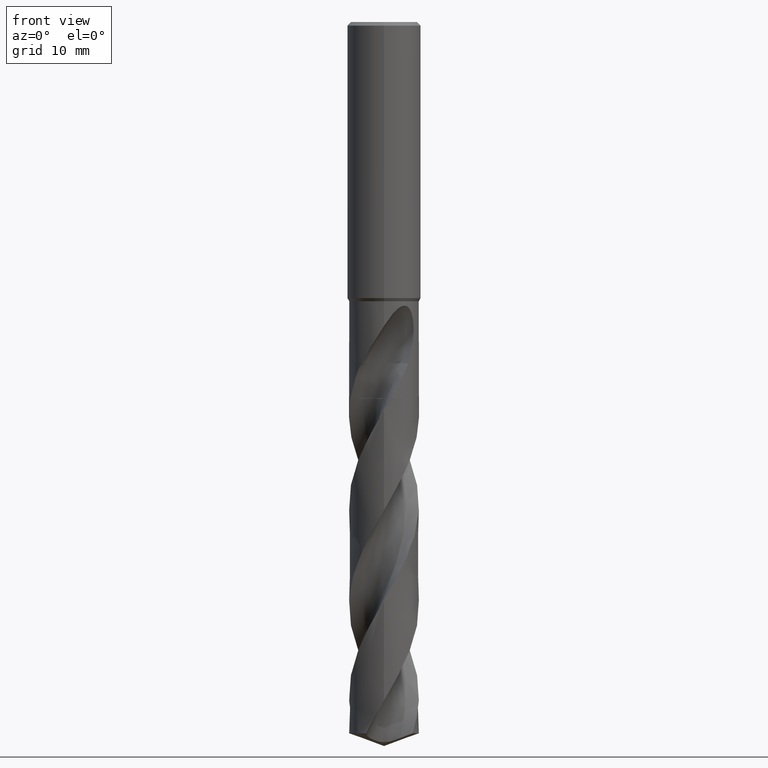
[diagram: clean part render]
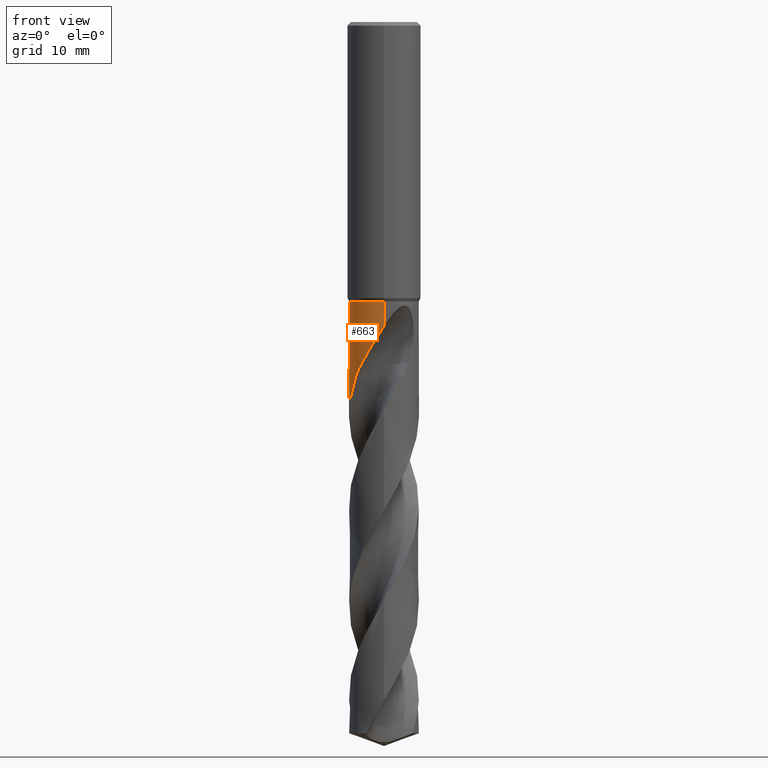
[diagram: same view with one face highlighted and labeled with its STEP entity id]
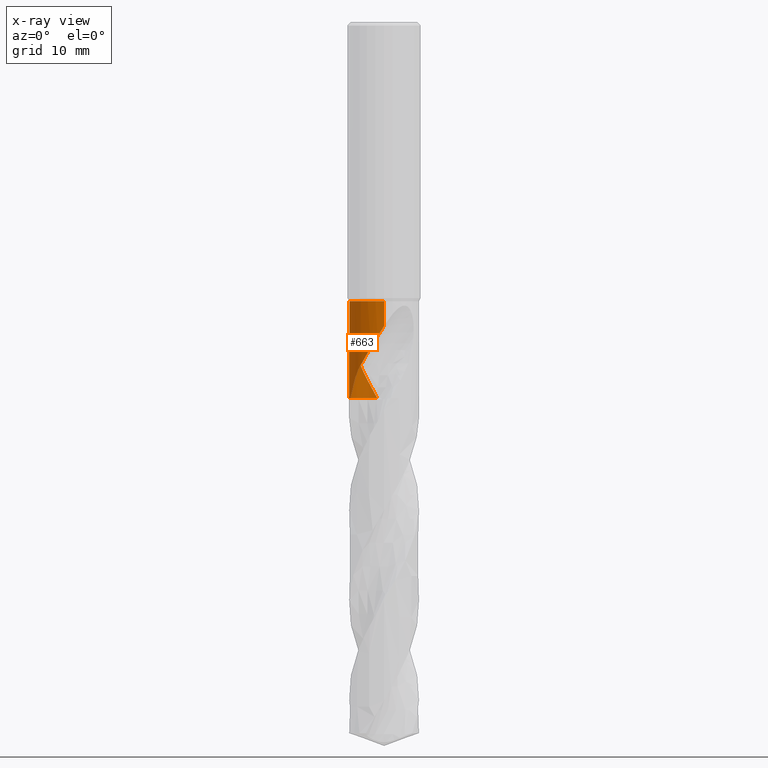
[diagram: x-ray of the same camera — body ghosted, the highlighted face saturated]
A machine part, front view. The second image highlights one B-rep face of the part: STEP entity #663.
The next image is the same camera in x-ray: the body ghosted, the highlighted face saturated — about 0% of this face is hidden behind the body in this view.
In plain terms, the highlighted cylindrical surface (edge-blend (fillet) strip) has radius 5.7 mm, axis along (-0, -0, 1).
Its self-contained STEP definition (entity closure, byte-faithful):
#313=VERTEX_POINT('',#846);
#341=EDGE_CURVE('',#471,#559,#876,.T.);
#387=EDGE_CURVE('',#313,#791,#926,.T.);
#393=EDGE_CURVE('',#589,#489,#932,.T.);
#471=VERTEX_POINT('',#1017);
#475=EDGE_CURVE('',#519,#589,#1021,.T.);
#489=VERTEX_POINT('',#1036);
#505=VERTEX_POINT('',#1055);
#519=VERTEX_POINT('',#1070);
#535=EDGE_CURVE('',#791,#741,#1086,.T.);
#559=VERTEX_POINT('',#1111);
#589=VERTEX_POINT('',#1146);
#627=EDGE_CURVE('',#741,#519,#1189,.T.);
#647=EDGE_CURVE('',#313,#559,#1213,.T.);
#663=ADVANCED_FACE('',(#1232),#1233,.T.);
#715=EDGE_CURVE('',#505,#471,#1288,.T.);
#741=VERTEX_POINT('',#1315);
#791=VERTEX_POINT('',#1370);
#799=EDGE_CURVE('',#489,#505,#1378,.T.);
#846=CARTESIAN_POINT('',(-5.47875196956208,-1.57266552579358,-61.3));
#876=B_SPLINE_CURVE_WITH_KNOTS('',3,(#1586,#1587,#1588,#1589,#1590,#1591,#1592,#1593,#1594,#1595),.UNSPECIFIED.,.F.,.F.,(4,2,2,2,4),(0.0,1.63487055576747,2.85433763048148,3.69220605193053,6.19574103660758),.UNSPECIFIED.);
#926=B_SPLINE_CURVE_WITH_KNOTS('',3,(#2193,#2194,#2195,#2196,#2197,#2198,#2199,#2200,#2201,#2202,#2203,#2204),.UNSPECIFIED.,.F.,.F.,(4,2,2,2,2,4),(0.0,1.64699401567559,2.63088226855699,3.58195019754428,4.70034829247554,8.72667290466027),.UNSPECIFIED.);
#932=LINE('',#2279,#2280);
#1017=CARTESIAN_POINT('',(-3.96194085290961,4.09792931589185,-55.6234));
#1021=CIRCLE('',#3865,5.7);
#1036=CARTESIAN_POINT('',(-1.69144072391988E-012,5.7,-49.564432701385));
#1055=CARTESIAN_POINT('',(-4.63776033084659,3.31378622026614,-52.5021927001465));
#1070=CARTESIAN_POINT('',(6.98025621678755E-016,-5.7,-45.5196152422707));
#1086=B_SPLINE_CURVE_WITH_KNOTS('',3,(#4314,#4315,#4316,#4317,#4318,#4319,#4320,#4321,#4322,#4323,#4324,#4325,#4326,#4327,#4328,#4329,#4330,#4331,#4332,#4333,#4334,#4335,#4336,#4337,#4338,#4339,#4340,#4341,#4342,#4343),.UNSPECIFIED.,.F.,.F.,(4,2,2,2,2,2,2,2,2,2,2,2,2,2,4),(0.0,2.7926778889615,4.31754598055786,5.69869259420309,7.30325232772353,9.23069609631088,10.9012443522705,11.6582801216618,12.2115809013783,12.7351652311766,13.3993631586042,14.3711116584775,15.7525664123368,16.6565782429127,17.6066332438752),.UNSPECIFIED.);
#1111=CARTESIAN_POINT('',(-1.10522274842498,5.59182284021623,-61.3));
#1146=CARTESIAN_POINT('',(0.0,5.7,-45.5196152422707));
#1189=LINE('',#6335,#6336);
#1213=CIRCLE('',#6586,5.7);
#1232=FACE_OUTER_BOUND('',#7447,.T.);
#1233=CYLINDRICAL_SURFACE('',#7448,5.7);
#1288=B_SPLINE_CURVE_WITH_KNOTS('',3,(#8278,#8279,#8280,#8281),.UNSPECIFIED.,.F.,.F.,(4,4),(0.0,3.2759034331426),.UNSPECIFIED.);
#1315=CARTESIAN_POINT('',(1.6889982332657E-012,-5.7,-49.564432701385));
#1370=CARTESIAN_POINT('',(-3.63212121843226,-4.3929142325584,-55.6234));
#1378=B_SPLINE_CURVE_WITH_KNOTS('',3,(#8854,#8855,#8856,#8857,#8858,#8859,#8860,#8861,#8862,#8863,#8864,#8865,#8866,#8867,#8868,#8869,#8870,#8871,#8872,#8873,#8874,#8875,#8876,#8877,#8878,#8879,#8880,#8881,#8882,#8883),.UNSPECIFIED.,.F.,.F.,(4,2,2,2,2,2,2,2,2,2,2,2,2,2,4),(0.0,2.7926778889615,4.31754598055786,5.69869259420267,7.30325232772212,9.23069609630879,10.9012443522678,11.6582801216589,12.2115809013751,12.7351652311733,13.3993631586008,14.3711116584752,15.7525664123376,16.6565782429152,17.6066332438795),.UNSPECIFIED.);
#1586=CARTESIAN_POINT('',(-3.96194085290961,4.09792931589185,-55.6234));
#1587=CARTESIAN_POINT('',(-3.77597537000228,4.27772359421294,-56.1030549041835));
#1588=CARTESIAN_POINT('',(-3.57714100146702,4.44677411159835,-56.5686135367263));
#1589=CARTESIAN_POINT('',(-3.17817943677422,4.73640582597114,-57.4051408853597));
#1590=CARTESIAN_POINT('',(-3.00312978459333,4.84984080419414,-57.7524285073502));
#1591=CARTESIAN_POINT('',(-2.67571952036504,5.03527637065019,-58.4011067751042));
#1592=CARTESIAN_POINT('',(-2.53978101246439,5.10516584672134,-58.6670861945326));
#1593=CARTESIAN_POINT('',(-1.98882929935844,5.36113244877479,-59.7247228936159));
#1594=CARTESIAN_POINT('',(-1.55362946708364,5.5031953353454,-60.50883901262));
#1595=CARTESIAN_POINT('',(-1.10522274842497,5.59182284021624,-61.3));
#2193=CARTESIAN_POINT('',(-5.47875196956208,-1.57266552579358,-61.3));
#2194=CARTESIAN_POINT('',(-5.40335440383491,-1.83533076195017,-60.8238477233715));
#2195=CARTESIAN_POINT('',(-5.30846827189244,-2.09473474052991,-60.3490606107644));
#2196=CARTESIAN_POINT('',(-5.12492971008555,-2.50056825543818,-59.5934859554556));
#2197=CARTESIAN_POINT('',(-5.05069916788943,-2.64740108197468,-59.3191059591133));
#2198=CARTESIAN_POINT('',(-4.88854390252972,-2.93574128336609,-58.7476767690487));
#2199=CARTESIAN_POINT('',(-4.80481494649796,-3.07043492682282,-58.4665300961866));
#2200=CARTESIAN_POINT('',(-4.61639737625296,-3.34840419137525,-57.8452226767753));
#2201=CARTESIAN_POINT('',(-4.54877127137133,-3.43661392676297,-57.618241371205));
#2202=CARTESIAN_POINT('',(-4.24222205960453,-3.82679410547349,-56.6811728276431));
#2203=CARTESIAN_POINT('',(-3.95129059072144,-4.12902065576756,-56.1104668483433));
#2204=CARTESIAN_POINT('',(-3.63212121843226,-4.3929142325584,-55.6234));
#2279=CARTESIAN_POINT('',(-6.98025621678755E-016,5.7,-53.4098076211353));
#2280=VECTOR('',#8971,1.0);
#3865=AXIS2_PLACEMENT_3D('',#9051,#9052,#9053);
#4314=CARTESIAN_POINT('',(-3.63212121843226,-4.3929142325584,-55.6234));
#4315=CARTESIAN_POINT('',(-3.25612880486541,-4.70378987250696,-54.8305903574183));
#4316=CARTESIAN_POINT('',(-2.82382285423306,-4.9801366934213,-54.0914357850701));
#4317=CARTESIAN_POINT('',(-2.07001022468731,-5.31885775432251,-52.8566277055386));
#4318=CARTESIAN_POINT('',(-1.79875293876833,-5.41629503688911,-52.4221805832301));
#4319=CARTESIAN_POINT('',(-1.2736331393028,-5.56191839378492,-51.581203761006));
#4320=CARTESIAN_POINT('',(-1.02211525844426,-5.61336677658903,-51.1785939428247));
#4321=CARTESIAN_POINT('',(-0.477685034960905,-5.68761944438632,-50.3108630831571));
#4322=CARTESIAN_POINT('',(-0.180225050920481,-5.70505189272031,-49.8389498652344));
#4323=CARTESIAN_POINT('',(0.480357587329574,-5.69115663555511,-48.8293715885689));
#4324=CARTESIAN_POINT('',(0.872016417329019,-5.64817925460845,-48.2549104709474));
#4325=CARTESIAN_POINT('',(1.62727976974039,-5.47461626209701,-47.3076638301113));
#4326=CARTESIAN_POINT('',(2.04513663928422,-5.34238325924354,-46.8454446984873));
#4327=CARTESIAN_POINT('',(2.67755904640715,-5.0367309148296,-46.4126228247785));
#4328=CARTESIAN_POINT('',(2.88689516822255,-4.92134005876107,-46.3056551672719));
#4329=CARTESIAN_POINT('',(3.25370015573399,-4.68374746759451,-46.2234849169615));
#4330=CARTESIAN_POINT('',(3.40414746799161,-4.57554602873244,-46.2219506548835));
#4331=CARTESIAN_POINT('',(3.68436370411239,-4.35267366933959,-46.2938669707582));
#4332=CARTESIAN_POINT('',(3.80691629961332,-4.24503077791542,-46.3612948466912));
#4333=CARTESIAN_POINT('',(4.0563094681869,-4.00913980592545,-46.5722688643476));
#4334=CARTESIAN_POINT('',(4.17169003208752,-3.88689519589313,-46.728035196308));
#4335=CARTESIAN_POINT('',(4.40802672911815,-3.6199651691906,-47.1545717534252));
#4336=CARTESIAN_POINT('',(4.5209909620893,-3.47460269525771,-47.4709358170665));
#4337=CARTESIAN_POINT('',(4.73341600978283,-3.18271673679078,-48.3560873087968));
#4338=CARTESIAN_POINT('',(4.8102125643954,-3.05838741426594,-48.9864803666684));
#4339=CARTESIAN_POINT('',(4.8482236367528,-2.9975876951175,-50.1531821325049));
#4340=CARTESIAN_POINT('',(4.83928615139985,-3.01240686606538,-50.6178200273247));
#4341=CARTESIAN_POINT('',(4.7761595783502,-3.11157973865214,-51.5608028469977));
#4342=CARTESIAN_POINT('',(4.71979503542682,-3.19897576679507,-52.0355985184659));
#4343=CARTESIAN_POINT('',(4.63776033084659,-3.31378622026614,-52.5021927001465));
#6335=CARTESIAN_POINT('',(6.98025621678755E-016,-5.7,-53.4098076211353));
#6336=VECTOR('',#9242,1.0);
#6586=AXIS2_PLACEMENT_3D('',#9295,#9296,#9297);
#7447=EDGE_LOOP('',(#9328,#9329,#9330,#9331,#9332,#9333,#9334,#9335,#9336));
#7448=AXIS2_PLACEMENT_3D('',#9337,#9338,#9339);
#8278=CARTESIAN_POINT('',(-4.63776033089921,3.3137862201925,-52.5021927001755));
#8279=CARTESIAN_POINT('',(-4.45399702903913,3.57096942243063,-53.5474111222003));
#8280=CARTESIAN_POINT('',(-4.23251313271507,3.83633588994647,-54.5988495958709));
#8281=CARTESIAN_POINT('',(-3.96194085290961,4.09792931589185,-55.6234));
#8854=CARTESIAN_POINT('',(3.63212121843226,4.3929142325584,-55.6234));
#8855=CARTESIAN_POINT('',(3.25612880486541,4.70378987250695,-54.8305903574183));
#8856=CARTESIAN_POINT('',(2.82382285423306,4.9801366934213,-54.0914357850701));
#8857=CARTESIAN_POINT('',(2.07001022468731,5.31885775432251,-52.8566277055386));
#8858=CARTESIAN_POINT('',(1.79875293876833,5.41629503688911,-52.4221805832301));
#8859=CARTESIAN_POINT('',(1.27363313930287,5.56191839378489,-51.5812037610061));
#8860=CARTESIAN_POINT('',(1.02211525844441,5.61336677658902,-51.178593942825));
#8861=CARTESIAN_POINT('',(0.477685034960813,5.68761944438635,-50.3108630831569));
#8862=CARTESIAN_POINT('',(0.180225050920438,5.70505189272031,-49.8389498652344));
#8863=CARTESIAN_POINT('',(-0.480357587329626,5.69115663555511,-48.8293715885688));
#8864=CARTESIAN_POINT('',(-0.872016417329036,5.64817925460844,-48.2549104709474));
#8865=CARTESIAN_POINT('',(-1.62727976974037,5.47461626209701,-47.3076638301113));
#8866=CARTESIAN_POINT('',(-2.04513663928421,5.34238325924354,-46.8454446984873));
#8867=CARTESIAN_POINT('',(-2.67755904640717,5.03673091482959,-46.4126228247785));
#8868=CARTESIAN_POINT('',(-2.88689516822256,4.92134005876107,-46.3056551672719));
#8869=CARTESIAN_POINT('',(-3.25370015573399,4.68374746759452,-46.2234849169616));
#8870=CARTESIAN_POINT('',(-3.40414746799161,4.57554602873244,-46.2219506548835));
#8871=CARTESIAN_POINT('',(-3.6843637041124,4.35267366933958,-46.2938669707582));
#8872=CARTESIAN_POINT('',(-3.80691629961334,4.2450307779154,-46.3612948466912));
#8873=CARTESIAN_POINT('',(-4.05630946818689,4.00913980592546,-46.5722688643476));
#8874=CARTESIAN_POINT('',(-4.1716900320875,3.88689519589315,-46.728035196308));
#8875=CARTESIAN_POINT('',(-4.40802672911835,3.61996516919037,-47.1545717534255));
#8876=CARTESIAN_POINT('',(-4.52099096208943,3.47460269525753,-47.4709358170671));
#8877=CARTESIAN_POINT('',(-4.73341600978279,3.18271673679083,-48.3560873087967));
#8878=CARTESIAN_POINT('',(-4.81021256439539,3.05838741426594,-48.9864803666682));
#8879=CARTESIAN_POINT('',(-4.8482236367528,2.9975876951175,-50.1531821325049));
#8880=CARTESIAN_POINT('',(-4.83928615139986,3.01240686606538,-50.6178200273247));
#8881=CARTESIAN_POINT('',(-4.7761595783502,3.11157973865214,-51.5608028469977));
#8882=CARTESIAN_POINT('',(-4.71979503542681,3.19897576679508,-52.0355985184659));
#8883=CARTESIAN_POINT('',(-4.63776033084659,3.31378622026614,-52.5021927001465));
#8971=DIRECTION('',(0.0,0.0,-1.0));
#9051=CARTESIAN_POINT('',(0.0,0.0,-45.5196152422707));
#9052=DIRECTION('',(0.0,0.0,-1.0));
#9053=DIRECTION('',(0.0,1.0,0.0));
#9242=DIRECTION('',(-0.0,-0.0,1.0));
#9295=CARTESIAN_POINT('',(0.0,0.0,-61.3));
#9296=DIRECTION('',(0.0,0.0,-1.0));
#9297=DIRECTION('',(0.0,1.0,0.0));
#9328=ORIENTED_EDGE('',*,*,#393,.T.);
#9329=ORIENTED_EDGE('',*,*,#799,.T.);
#9330=ORIENTED_EDGE('',*,*,#715,.T.);
#9331=ORIENTED_EDGE('',*,*,#341,.T.);
#9332=ORIENTED_EDGE('',*,*,#647,.F.);
#9333=ORIENTED_EDGE('',*,*,#387,.T.);
#9334=ORIENTED_EDGE('',*,*,#535,.T.);
#9335=ORIENTED_EDGE('',*,*,#627,.T.);
#9336=ORIENTED_EDGE('',*,*,#475,.T.);
#9337=CARTESIAN_POINT('',(0.0,0.0,-53.4098076211353));
#9338=DIRECTION('',(-0.0,-0.0,1.0));
#9339=DIRECTION('',(0.0,1.0,0.0));